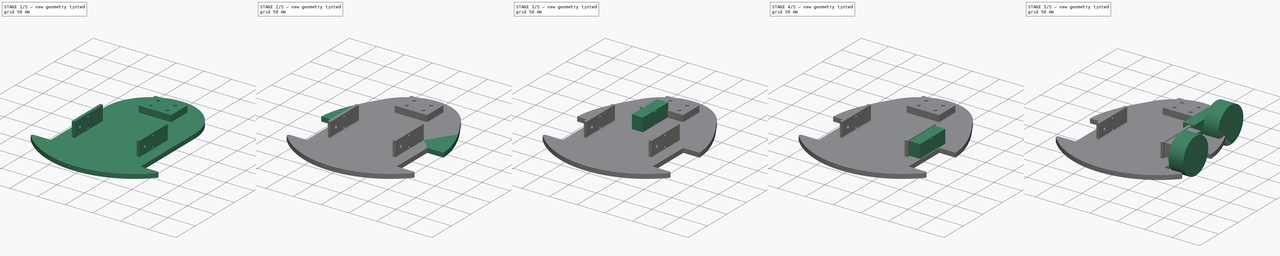
[diagram: build sequence overview — one tinted view per stage of 5, left to right]
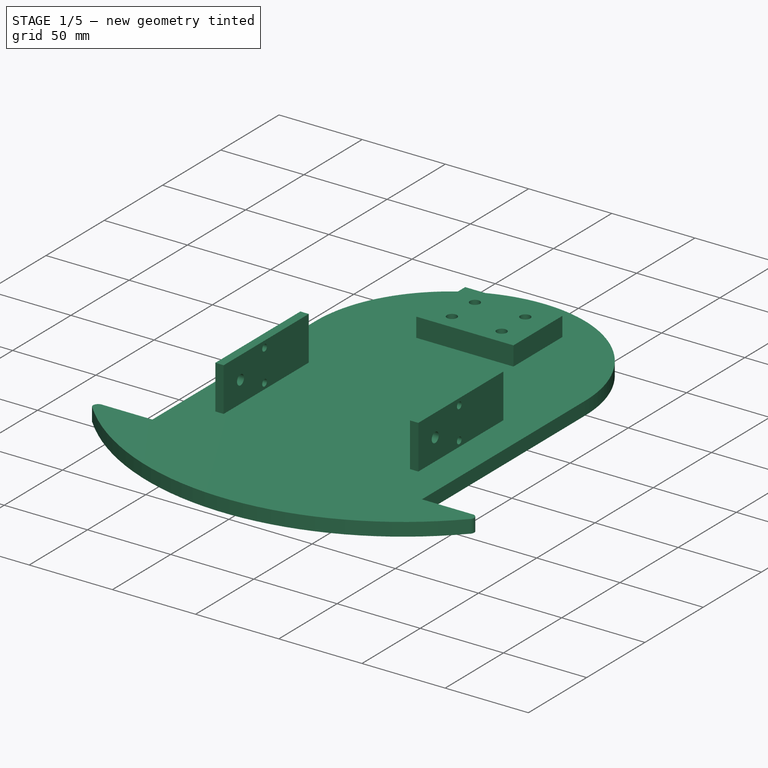
[diagram: stage 1 of 5 — iso view after this stage's code; geometry added in this stage tinted green]
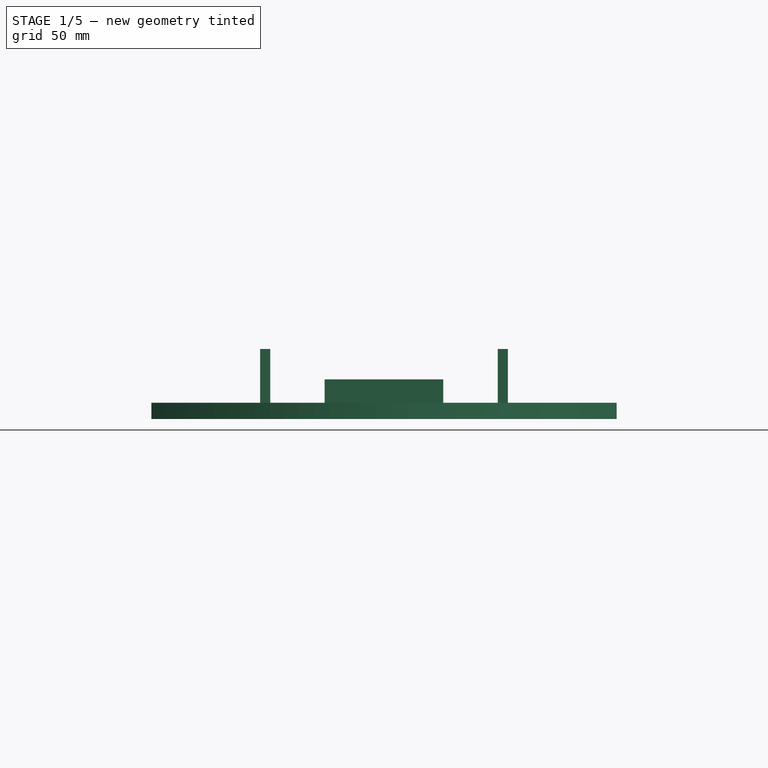
[diagram: stage 1 of 5 — front view after this stage's code; geometry added in this stage tinted green]
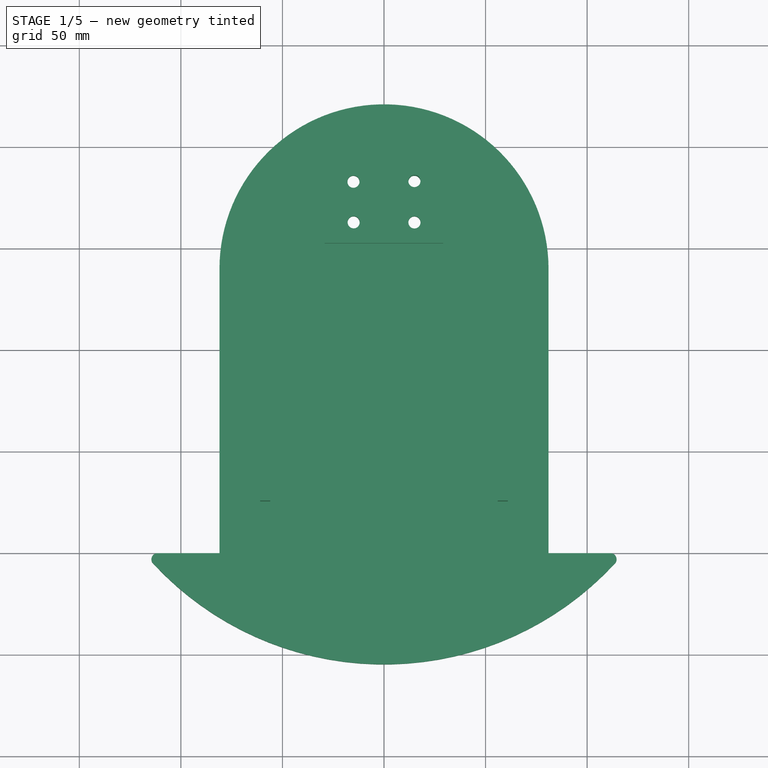
[diagram: stage 1 of 5 — top view after this stage's code; geometry added in this stage tinted green]
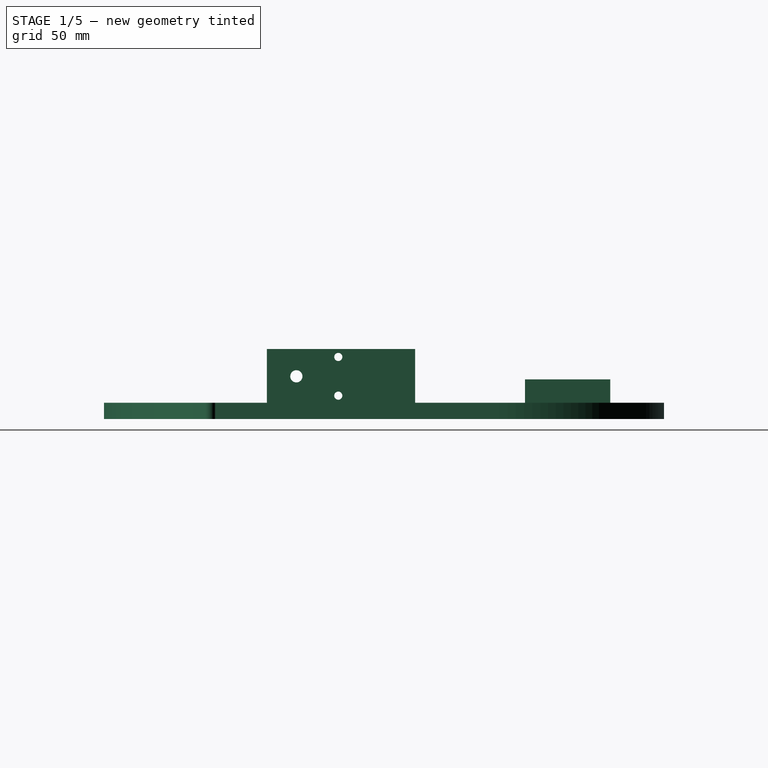
[diagram: stage 1 of 5 — right view after this stage's code; geometry added in this stage tinted green]
FCSTD DOCUMENT  (FreeCAD 0.19R24291 (Git))
Label: chasis_v2
License: All rights reserved
LicenseURL: http://en.wikipedia.org/wiki/All_rights_reserved
objects: Part::Mirroring×9, Part::MultiFuse×4, Sketcher::SketchObject×4, Part::Extrusion×4, Part::Cylinder×3, Part::Cut×2, Part::Box×1, Part::Chamfer×1
note: 28 computed .brp shape members not serialized (recipe doc carries the construction recipe); baked Part::Feature solids carry a one-line shape summary decoded from their .brp

FEATURE [Sketcher::SketchObject] Sketch001  label="sk_chasis_abajo2"
  FullyConstrained = false
  sketch-geometry (12):
    g0: LineSegment StartX=81 StartY=40 StartZ=0 EndX=81 EndY=-100 EndZ=0
    g1: LineSegment StartX=-81 StartY=-100 StartZ=0 EndX=-81 EndY=40 EndZ=0
    g2: LineSegment StartX=-81 StartY=-100 StartZ=0 EndX=-111 EndY=-100 EndZ=0
    g3: LineSegment StartX=81 StartY=-100 StartZ=0 EndX=111 EndY=-100 EndZ=0
    g4: ArcOfCircle CenterX=0 CenterY=0 CenterZ=0 NormalX=0 NormalY=0 NormalZ=1 AngleXU=0 Radius=154.77 StartAngle=3.89124 EndAngle=5.53353
    g5: ArcOfCircle CenterX=-111.452 CenterY=-103.016 CenterZ=0 NormalX=0 NormalY=0 NormalZ=1 AngleXU=0 Radius=3.05 StartAngle=1.42199 EndAngle=4.06966
    g6: ArcOfCircle CenterX=111.452 CenterY=-103.016 CenterZ=0 NormalX=0 NormalY=0 NormalZ=1 AngleXU=0 Radius=3.05 StartAngle=5.35512 EndAngle=8.00278
    g7: ArcOfCircle CenterX=-2.6e-15 CenterY=40 CenterZ=0 NormalX=0 NormalY=0 NormalZ=1 AngleXU=0 Radius=81 StartAngle=3.64792e-09 EndAngle=3.14159
    g8: Circle CenterX=-15 CenterY=82.8697 CenterZ=0 NormalX=0 NormalY=0 NormalZ=1 AngleXU=0 Radius=3
    g9: Circle CenterX=-15 CenterY=62.8697 CenterZ=0 NormalX=0 NormalY=0 NormalZ=1 AngleXU=0 Radius=3
    g10: Circle CenterX=15 CenterY=82.8697 CenterZ=0 NormalX=0 NormalY=0 NormalZ=1 AngleXU=0 Radius=3
    g11: Circle CenterX=15 CenterY=62.8697 CenterZ=0 NormalX=0 NormalY=0 NormalZ=1 AngleXU=0 Radius=3
  constraints (35):
    c: Vertical(g0)
    c: Vertical(g1)
    c: Symmetric(g1,g0,g-2)
    c: Horizontal(g2)
    c: DistanceX(g2,g2) = 30
    c: Horizontal(g3)
    c: Coincident(g4,g-1)
    c: DistanceY(g2,g-1) = 100
    c: Coincident(g5,g2)
    c: Coincident(g5,g4)
    c: Coincident(g6,g3)
    c: Coincident(g6,g4)
    c: Radius(g5) = 3.05
    c: Angle(g5) = 2.64766
    c: Radius(g6) = 3.05
    c: Angle(g6) = 2.64766
    c: Equal(g2,g3)
    c: Coincident(g3,g0)
    c: Coincident(g1,g2)
    c: DistanceY(g1,g1) = 140
    c: Equal(g1,g0)
    c: Coincident(g7,g1)
    c: Coincident(g7,g0)
    c: DistanceX(g1,g0) = 162
    c: Radius(g7) = 81
    c: Radius(g8) = 3
    c: Equal(g8,g9) = 3
    c: DistanceY(g9,g8) = 20
    c: Equal(g8,g10) = 3
    c: DistanceX(g8,g10) = 30
    c: DistanceX(g9,g11) = 30
    c: Symmetric(g8,g10,g-2)
    c: Symmetric(g9,g11,g-2)
    c: Distance(g11,g0) = 69.85
    c: Radius(g4) = 154.77
FEATURE [Sketcher::SketchObject] Sketch003  label="sk_Union_motor_chasis"
  FullyConstrained = false
  Placement = pos=(0,0,0) rot=(0.57735,0.57735,0.57735;2.0944rad)
  sketch-geometry (7):
    g0: LineSegment StartX=-74.52 StartY=13.438 StartZ=0 EndX=-1.52 EndY=13.438 EndZ=0
    g1: LineSegment StartX=-1.52 StartY=13.438 StartZ=0 EndX=-1.52 EndY=-13.562 EndZ=0
    g2: LineSegment StartX=-1.52 StartY=-13.562 StartZ=0 EndX=-74.52 EndY=-13.562 EndZ=0
    g3: LineSegment StartX=-74.52 StartY=-13.562 StartZ=0 EndX=-74.52 EndY=13.438 EndZ=0
    g4: Circle CenterX=-60.02 CenterY=0 CenterZ=0 NormalX=0 NormalY=0 NormalZ=1 AngleXU=0 Radius=3
    g5: Circle CenterX=-39.38 CenterY=9.52 CenterZ=0 NormalX=0 NormalY=0 NormalZ=1 AngleXU=0 Radius=2
    g6: Circle CenterX=-39.38 CenterY=-9.52 CenterZ=0 NormalX=0 NormalY=0 NormalZ=1 AngleXU=0 Radius=2
  constraints (19):
    c: Coincident(g0,g1)
    c: Coincident(g1,g2)
    c: Coincident(g2,g3)
    c: Coincident(g3,g0)
    c: Horizontal(g0)
    c: Horizontal(g2)
    c: Vertical(g1)
    c: Vertical(g3)
    c: DistanceY(g3,g3) = 27
    c: DistanceX(g0,g0) = 73
    c: PointOnObject(g4,g-1)
    c: Radius(g4) = 3
    c: Radius(g5) = 2
    c: Radius(g6) = 2
    c: Symmetric(g5,g6,g-1)
    c: DistanceY(g6,g5) = 19.04
    c: Distance(g4,g3) = 14.5
    c: DistanceX(g-2,g0) = -1.52
    c: Distance(g5,g3) = 35.14
FEATURE [Part::Extrusion] Extrude002  label="Union_chasis_base"
  Base = -> Sketch003
  Dir = (1,0,0)
  DirMode = 2
  FaceMakerClass = Part::FaceMakerBullseye
  LengthFwd = 5
  LengthRev = 0
  Placement = pos=(-61,0,1) rot=(0,0,1;0rad)
  Solid = true
  Symmetric = false
FEATURE [Part::Mirroring] Part__Mirroring008  label="Union_chasis_base (Mirror #9)"
  Base = (0,0,0)
  Normal = (1,0,0)
  Source = -> Extrude002
FEATURE [Part::Extrusion] Extrude  label="base_chasis_abajo"
  Base = -> Sketch001
  Dir = (0,0,1)
  DirMode = 2
  FaceMakerClass = Part::FaceMakerBullseye
  LengthFwd = 8
  LengthRev = 0
  Placement = pos=(0,0,-20) rot=(0,0,1;0rad)
  Solid = true
  Symmetric = false
FEATURE [Part::MultiFuse] Fusion001  label="base con uniones"
  Refine = true
  Shapes = -> [Extrude,Extrude002,Part__Mirroring008]
FEATURE [Sketcher::SketchObject] Sketch004
  FullyConstrained = false
  sketch-geometry (8):
    g0: LineSegment StartX=-29.2 StartY=94.5227 StartZ=0 EndX=29.2 EndY=94.5227 EndZ=0
    g1: LineSegment StartX=29.2 StartY=94.5227 StartZ=0 EndX=29.2 EndY=52.5227 EndZ=0
    g2: LineSegment StartX=29.2 StartY=52.5227 StartZ=0 EndX=-29.2 EndY=52.5227 EndZ=0
    g3: LineSegment StartX=-29.2 StartY=52.5227 StartZ=0 EndX=-29.2 EndY=94.5227 EndZ=0
    g4: Circle CenterX=-15.07 CenterY=82.7027 CenterZ=0 NormalX=0 NormalY=0 NormalZ=1 AngleXU=0 Radius=3
    g5: Circle CenterX=14.96 CenterY=83.0459 CenterZ=0 NormalX=0 NormalY=0 NormalZ=1 AngleXU=0 Radius=3
    g6: Circle CenterX=-14.926 CenterY=62.7227 CenterZ=0 NormalX=0 NormalY=0 NormalZ=1 AngleXU=0 Radius=3
    g7: Circle CenterX=14.984 CenterY=62.6759 CenterZ=0 NormalX=0 NormalY=0 NormalZ=1 AngleXU=0 Radius=3
  constraints (20):
    c: Coincident(g0,g1)
    c: Coincident(g1,g2)
    c: Coincident(g2,g3)
    c: Coincident(g3,g0)
    c: Horizontal(g0)
    c: Vertical(g1)
    c: Vertical(g3)
    c: DistanceY(g3,g3) = 42
    c: Symmetric(g2,g1,g-2)
    c: Distance(g4,g0) = 11.82
    c: DistanceX(g4,g5) = 30.03
    c: DistanceY(g6,g4) = 19.98
    c: DistanceX(g6,g7) = 29.91
    c: Distance(g5,g1) = 14.24
    c: DistanceY(g7,g5) = 20.37
    c: DistanceX(g0,g0) = 58.4
    c: Radius(g5) = 3
    c: Radius(g4) = 3
    c: Radius(g6) = 3
    c: Radius(g7) = 3
FEATURE [Part::Extrusion] Extrude004  label="rueda_loca"
  Base = -> Sketch004
  Dir = (0,0,1)
  DirMode = 2
  FaceMakerClass = Part::FaceMakerBullseye
  LengthFwd = 11.5
  LengthRev = 0
  Placement = pos=(0,0,-12) rot=(0,0,1;0rad)
  Solid = true
  Symmetric = false
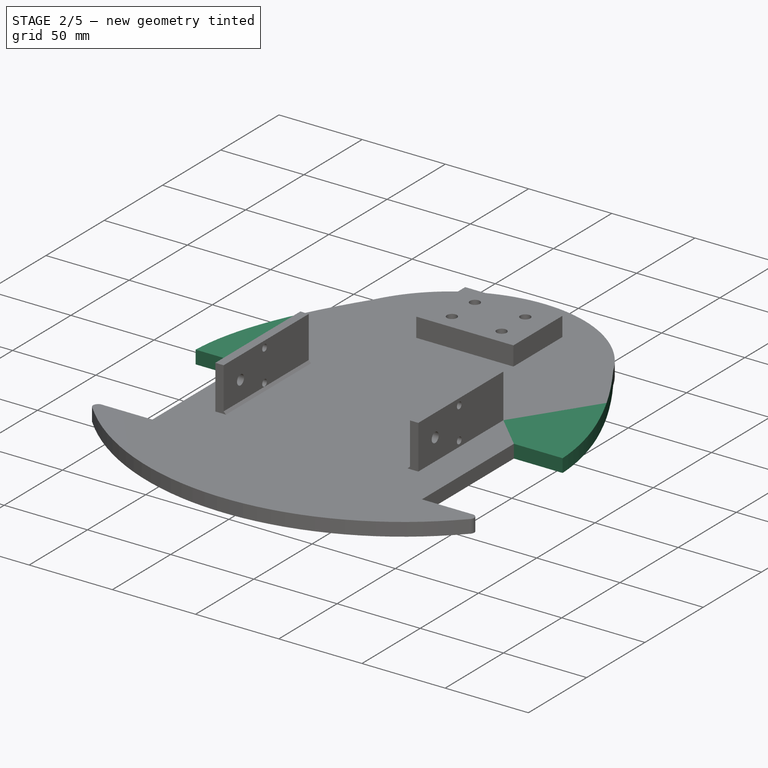
[diagram: stage 2 of 5 — iso view after this stage's code; geometry added in this stage tinted green]
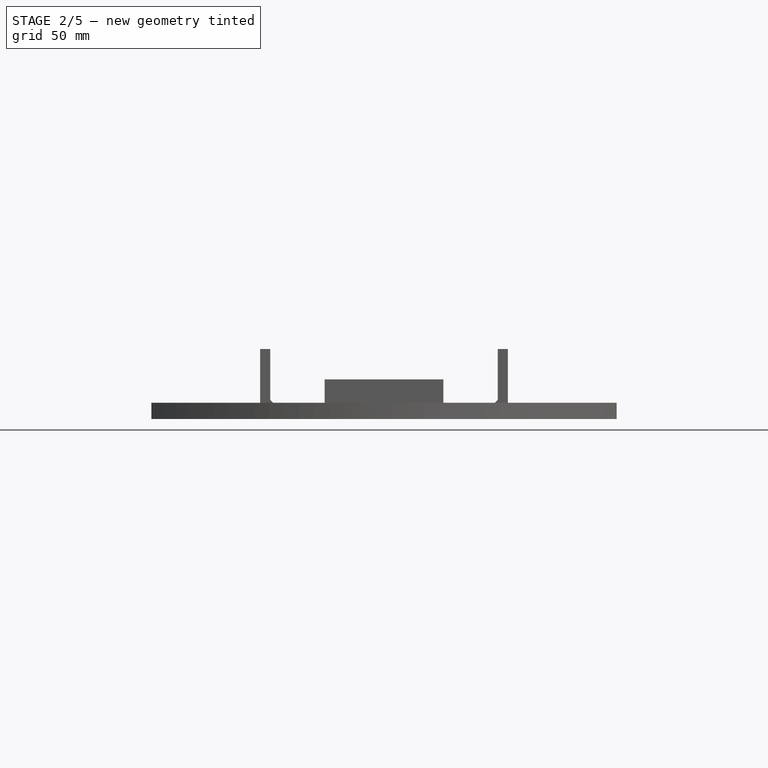
[diagram: stage 2 of 5 — front view after this stage's code; geometry added in this stage tinted green]
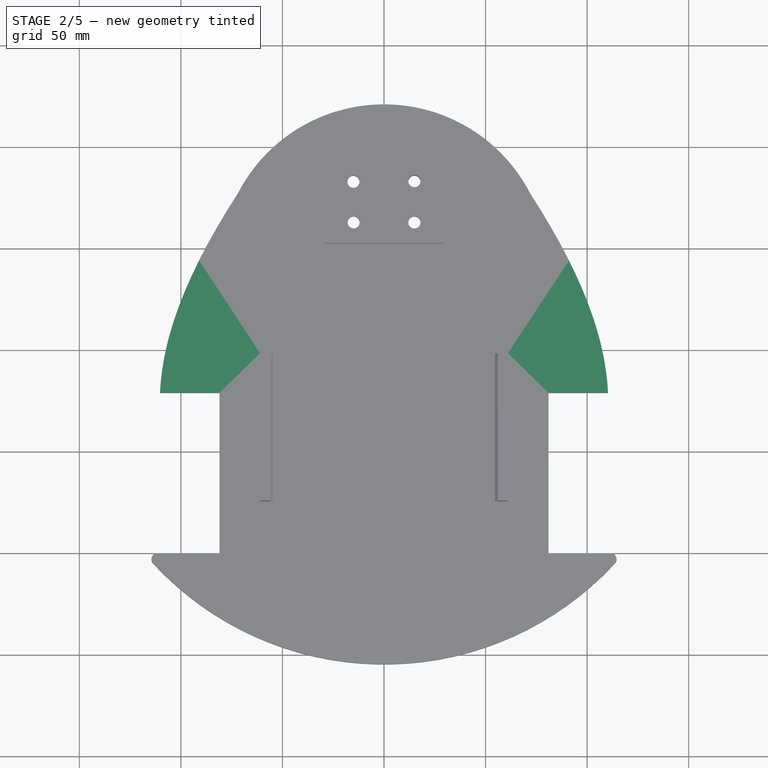
[diagram: stage 2 of 5 — top view after this stage's code; geometry added in this stage tinted green]
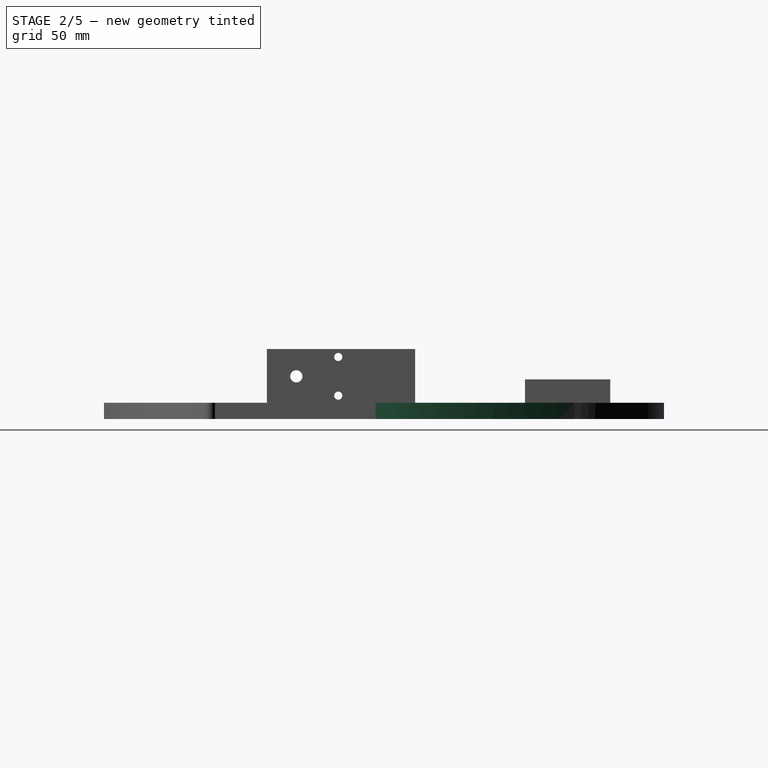
[diagram: stage 2 of 5 — right view after this stage's code; geometry added in this stage tinted green]
FEATURE [Sketcher::SketchObject] Sketch
  FullyConstrained = false
  sketch-geometry (9):
    g0: LineSegment StartX=-81.2819 StartY=-21.0619 StartZ=0 EndX=-111.282 EndY=-21.0619 EndZ=0
    g1-g4: Circle x4 (B-spline internal-alignment scaffolding for g5; pole/knot coordinates omitted)
    g5: BSplineCurve PolesCount=4 KnotsCount=2 Degree=3 IsPeriodic=0
    g6: GeomPoint X=-111.282 Y=-21.0619 Z=0
    g7: GeomPoint X=-67.3888 Y=85.4559 Z=0
    g8: LineSegment StartX=-67.3888 StartY=85.4559 StartZ=0 EndX=-81.2819 EndY=-21.0619 EndZ=0
  constraints (13):
    c: Horizontal(g0)
    c: DistanceX(g0,g0) = 30
    c: Coincident(g5,g0)
    c: Weight(g1) = 1
    c: Equal(g1,g2)
    c: Equal(g1,g3)
    c: Equal(g1,g4)
    c: InternalAlignment(g1-g4 -> g5) x4
    c: InternalAlignment(g6,g5)
    c: InternalAlignment(g7,g5)
    c: Coincident(g8,g5)
    c: Coincident(g8,g0)
    c: Distance(g8) = 107.42
FEATURE [Part::Extrusion] Extrude003  label="aleron"
  Base = -> Sketch
  Dir = (0,0,1)
  DirMode = 2
  FaceMakerClass = Part::FaceMakerBullseye
  LengthFwd = 8
  LengthRev = 0
  Placement = pos=(1,0,-20) rot=(0,0,1;0rad)
  Solid = true
  Symmetric = false
FEATURE [Part::Mirroring] Part__Mirroring009  label="aleron (Mirror #9)"
  Base = (0,0,0)
  Normal = (1,0,0)
  Source = -> Extrude003
FEATURE [Part::Chamfer] Chamfer
  Base = -> Fusion001
  Edges = 2 edges r=1.4: [Edge28,Edge29]
FEATURE [Part::MultiFuse] Fusion002  label="Ampliacion base"
  Refine = true
  Shapes = -> [Chamfer,Extrude003,Part__Mirroring009]
FEATURE [Part::MultiFuse] Fusion003  label="chasis_abajo"
  Refine = true
  Shapes = -> [Fusion002,Extrude004]
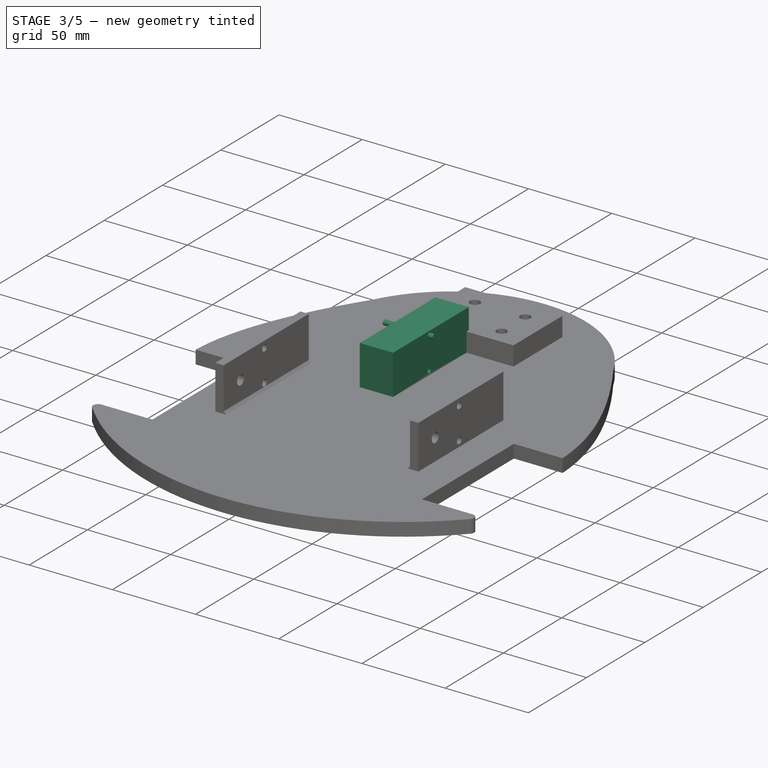
[diagram: stage 3 of 5 — iso view after this stage's code; geometry added in this stage tinted green]
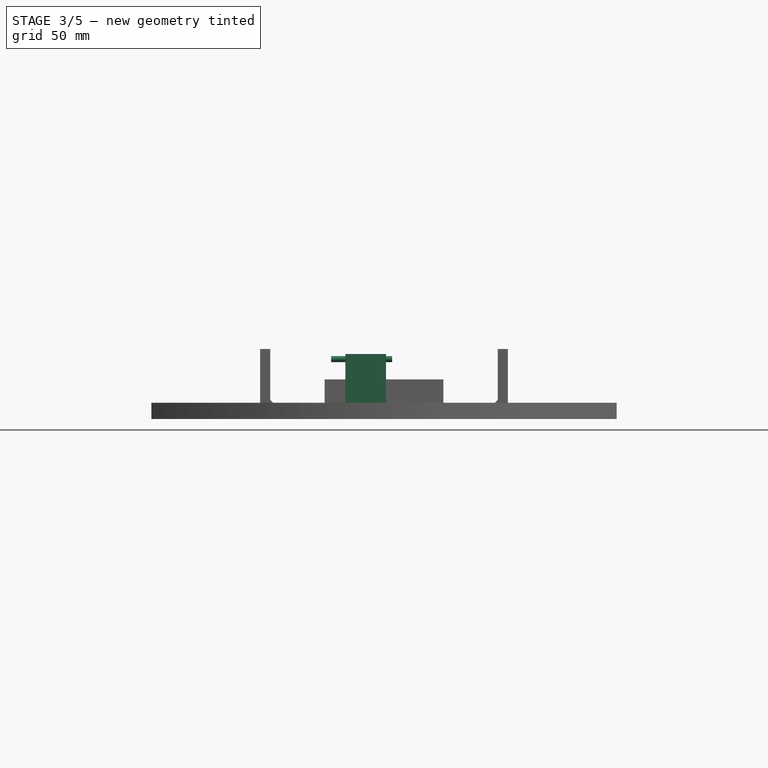
[diagram: stage 3 of 5 — front view after this stage's code; geometry added in this stage tinted green]
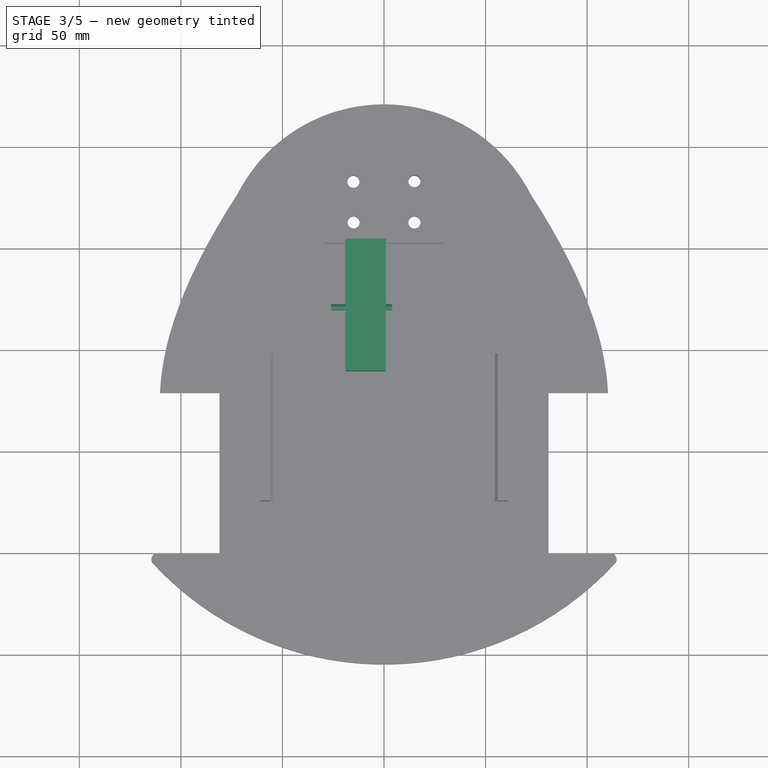
[diagram: stage 3 of 5 — top view after this stage's code; geometry added in this stage tinted green]
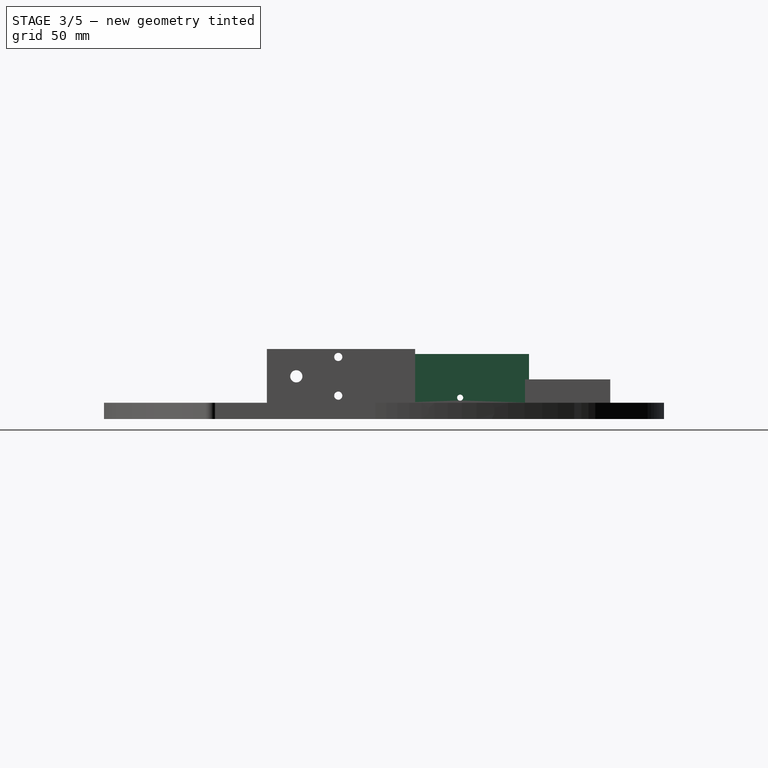
[diagram: stage 3 of 5 — right view after this stage's code; geometry added in this stage tinted green]
FEATURE [Part::Box] Box  label="Cube"
  AttacherType = Attacher::AttachEngine3D
  Height = 24
  Length = 20
  Placement = pos=(-19,-10.5,-12) rot=(0,0,1;0rad)
  Width = 65
FEATURE [Part::Cylinder] Cylinder002
  Angle = 360
  AttacherType = Attacher::AttachEngine3D
  Height = 30
  Placement = pos=(4,20.63,-9.5) rot=(0,-1,0;1.5708rad)
  Radius = 1.5
FEATURE [Part::Mirroring] Part__Mirroring  label="Cylinder002 (Mirror #1)"
  Base = (0,0,0)
  Normal = (0,0,1)
  Source = -> Cylinder002
FEATURE [Part::Cut] Cut
  Base = -> Box
  Refine = true
  Tool = -> Cylinder002
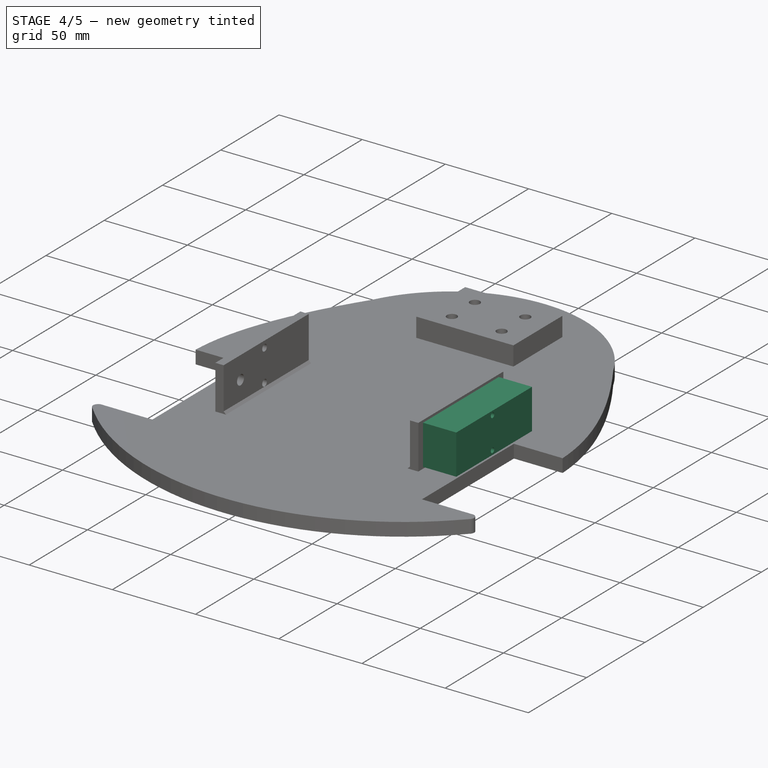
[diagram: stage 4 of 5 — iso view after this stage's code; geometry added in this stage tinted green]
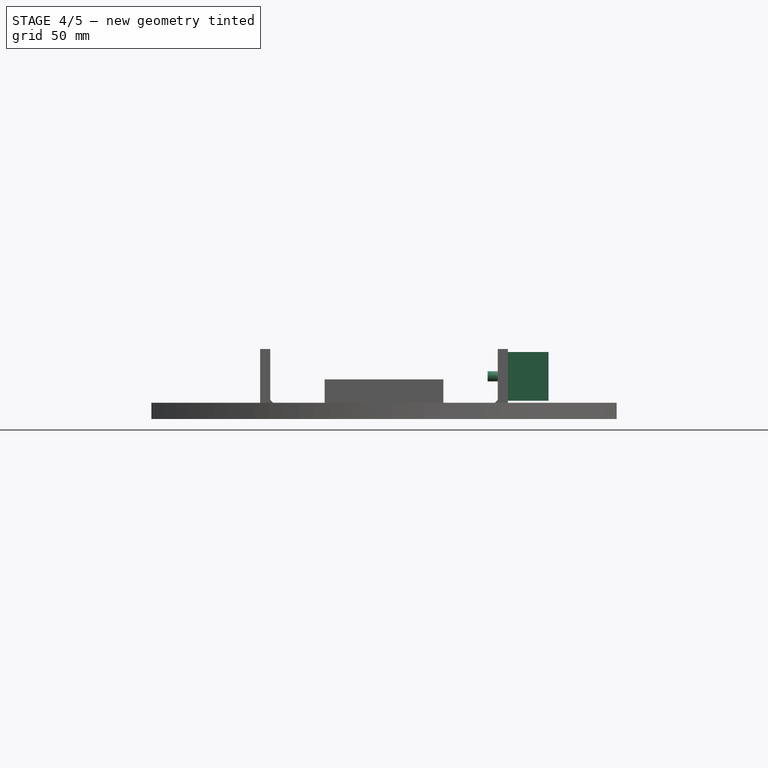
[diagram: stage 4 of 5 — front view after this stage's code; geometry added in this stage tinted green]
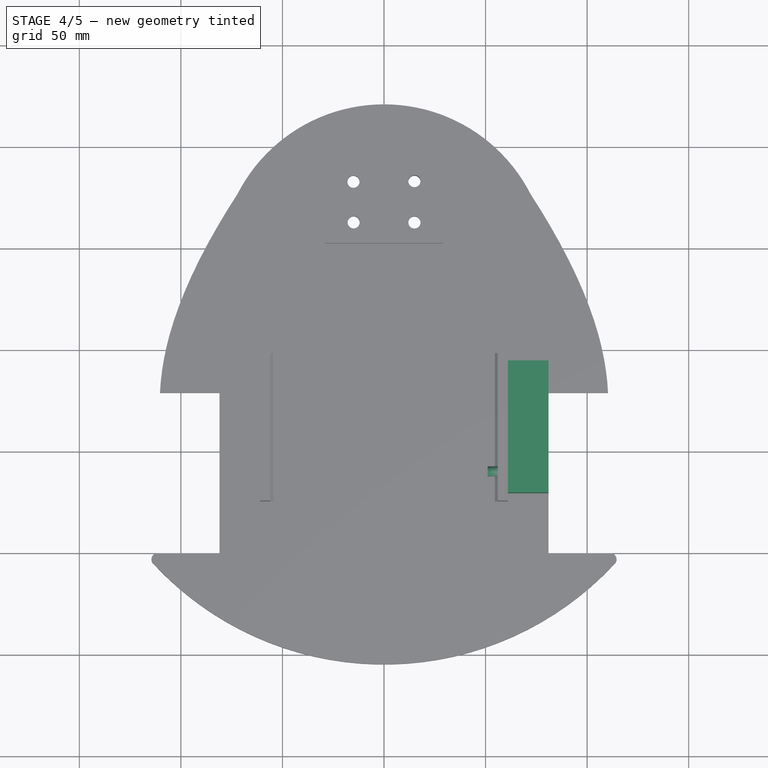
[diagram: stage 4 of 5 — top view after this stage's code; geometry added in this stage tinted green]
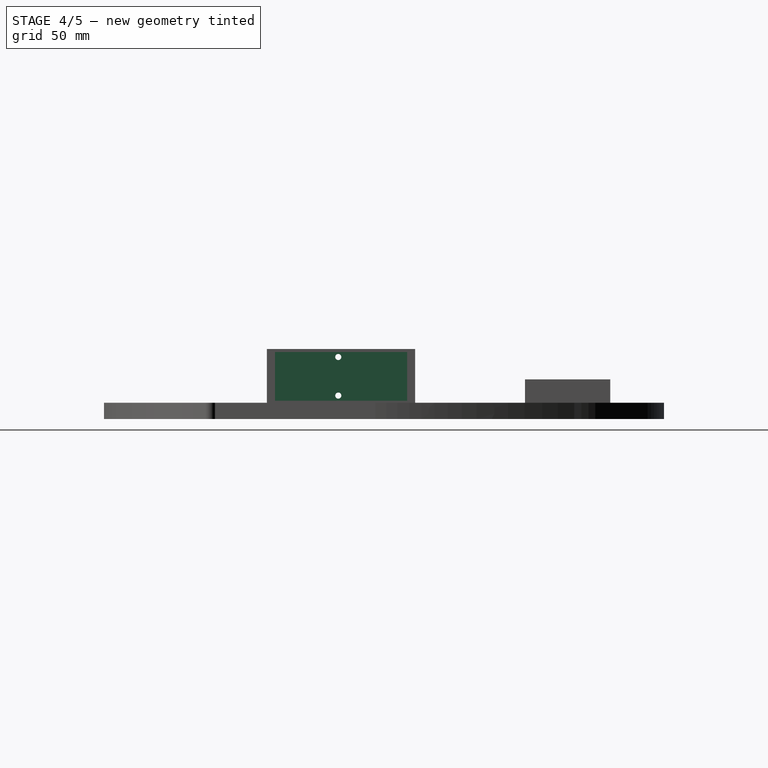
[diagram: stage 4 of 5 — right view after this stage's code; geometry added in this stage tinted green]
FEATURE [Part::Cylinder] Cylinder001  label="Cylinder"
  Angle = 360
  AttacherType = Attacher::AttachEngine3D
  Height = 10
  Placement = pos=(-20,0,1e-15) rot=(0,-1,0;1.5708rad)
  Radius = 2.5
FEATURE [Part::Cut] Cut001
  Base = -> Cut
  Placement = pos=(-1,0,0) rot=(0,0,1;0rad)
  Refine = true
  Tool = -> Part__Mirroring
FEATURE [Part::MultiFuse] Fusion  label="Motor"
  Placement = pos=(-61,60,8e-15) rot=(0,0,1;3.14159rad)
  Refine = true
  Shapes = -> [Cut001,Cylinder001]
FEATURE [Part::Mirroring] Part__Mirroring004  label="Motor (Mirror #5)"
  Base = (0,0,0)
  Normal = (0,1,0)
  Placement = pos=(-20,0,1) rot=(0,0,1;0rad)
  Source = -> Fusion
FEATURE [Part::Mirroring] Part__Mirroring006  label="Motor (Mirror #7)"
  Base = (0,0,0)
  Normal = (1,0,0)
  Source = -> Part__Mirroring004
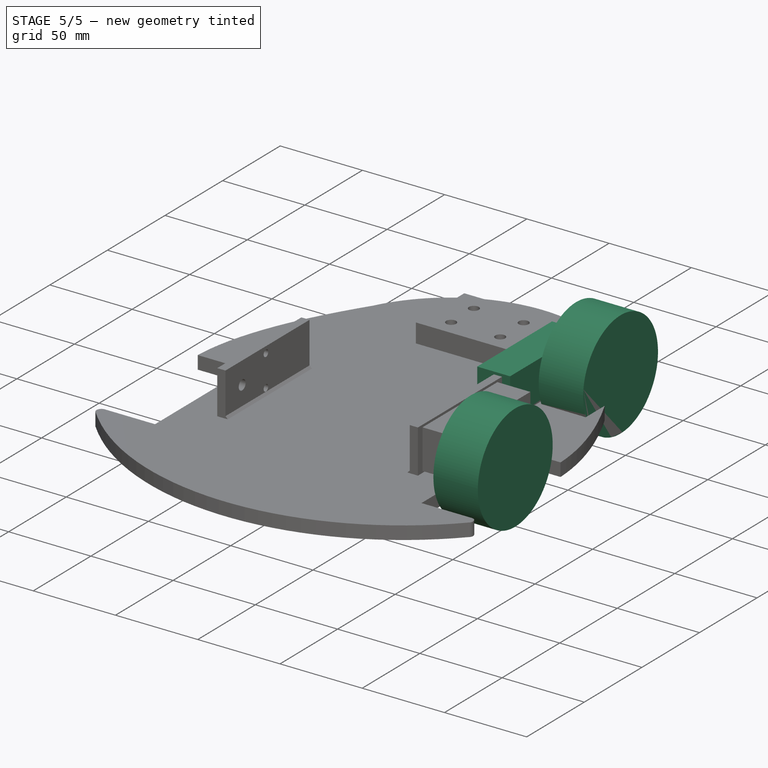
[diagram: stage 5 of 5 — iso view after this stage's code; geometry added in this stage tinted green]
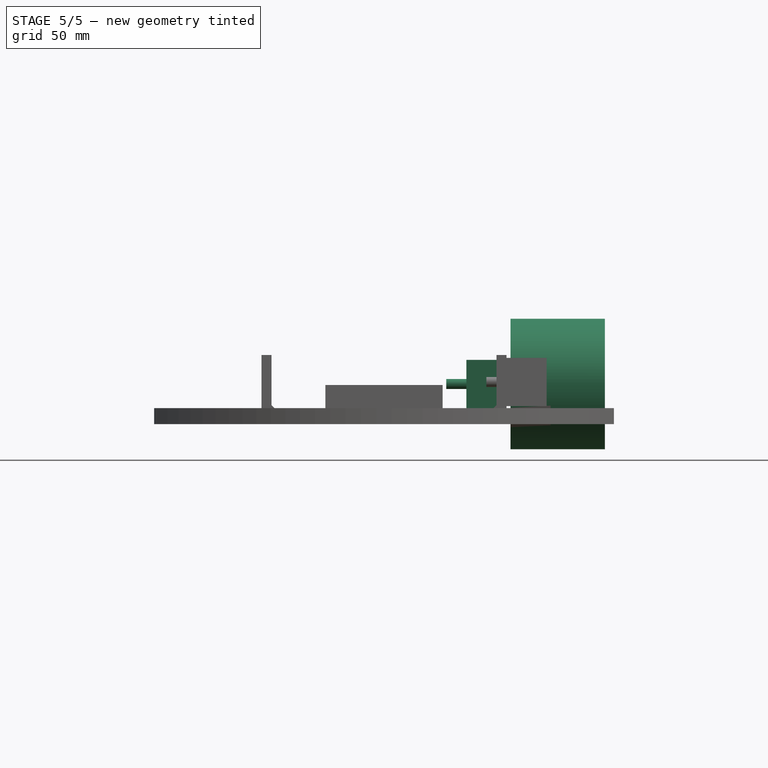
[diagram: stage 5 of 5 — front view after this stage's code; geometry added in this stage tinted green]
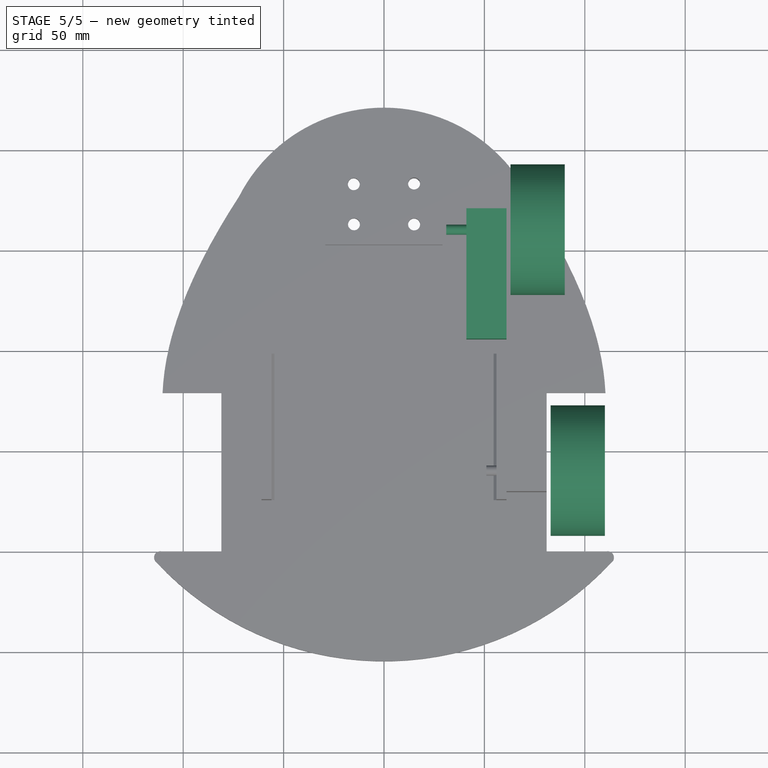
[diagram: stage 5 of 5 — top view after this stage's code; geometry added in this stage tinted green]
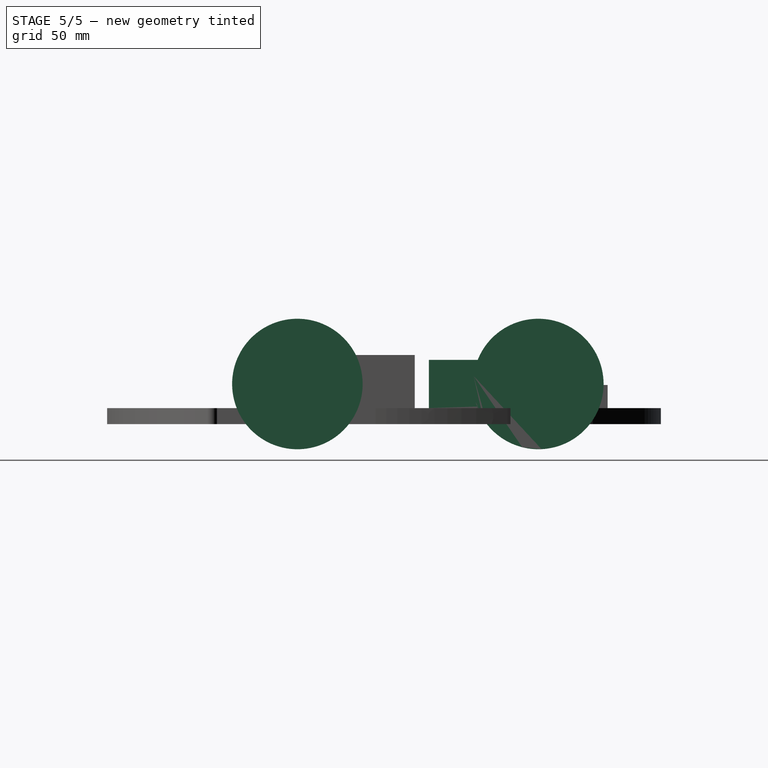
[diagram: stage 5 of 5 — right view after this stage's code; geometry added in this stage tinted green]
FEATURE [Part::Cylinder] Cylinder  label="Neumatico"
  Angle = 360
  AttacherType = Attacher::AttachEngine3D
  Height = 27
  Placement = pos=(-90,60,-2.3e-14) rot=(0,1,0;1.5708rad)
  Radius = 32.5
FEATURE [Part::Mirroring] Part__Mirroring001  label="Neumatico (Mirror #2)"
  Base = (0,0,0)
  Normal = (1,0,0)
  Source = -> Cylinder
FEATURE [Part::Mirroring] Part__Mirroring002  label="Motor (Mirror #3)"
  Base = (0,0,0)
  Normal = (1,0,0)
  Source = -> Fusion
FEATURE [Part::Mirroring] Part__Mirroring003  label="Neumatico (Mirror #4)"
  Base = (0,0,0)
  Normal = (0,1,0)
  Placement = pos=(-20,0,0) rot=(0,0,1;0rad)
  Source = -> Cylinder
FEATURE [Part::Mirroring] Part__Mirroring005  label="Neumatico (Mirror #6)"
  Base = (0,0,0)
  Normal = (1,0,0)
  Source = -> Part__Mirroring003
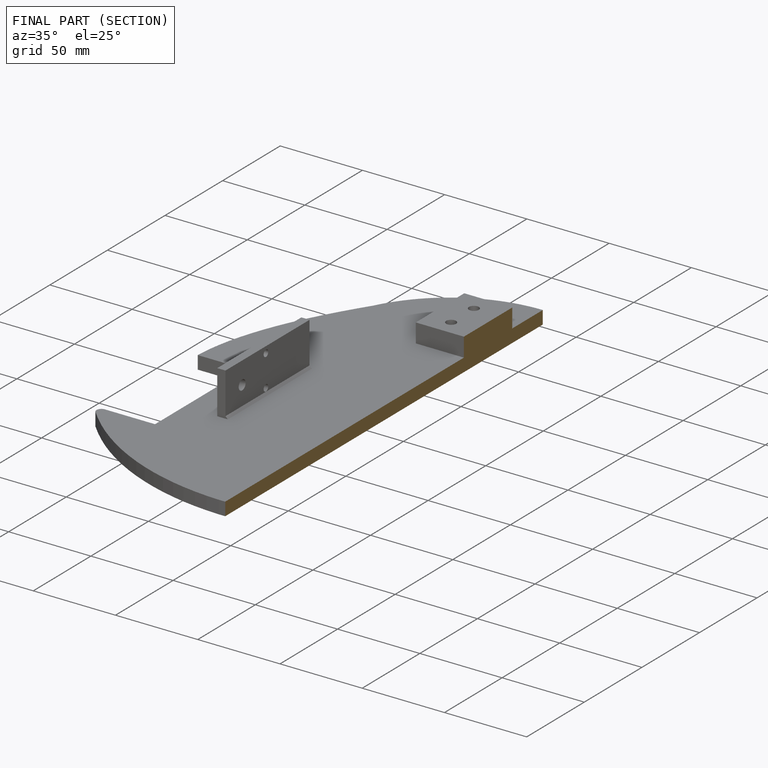
[diagram: finished part — half-section view (interior)]
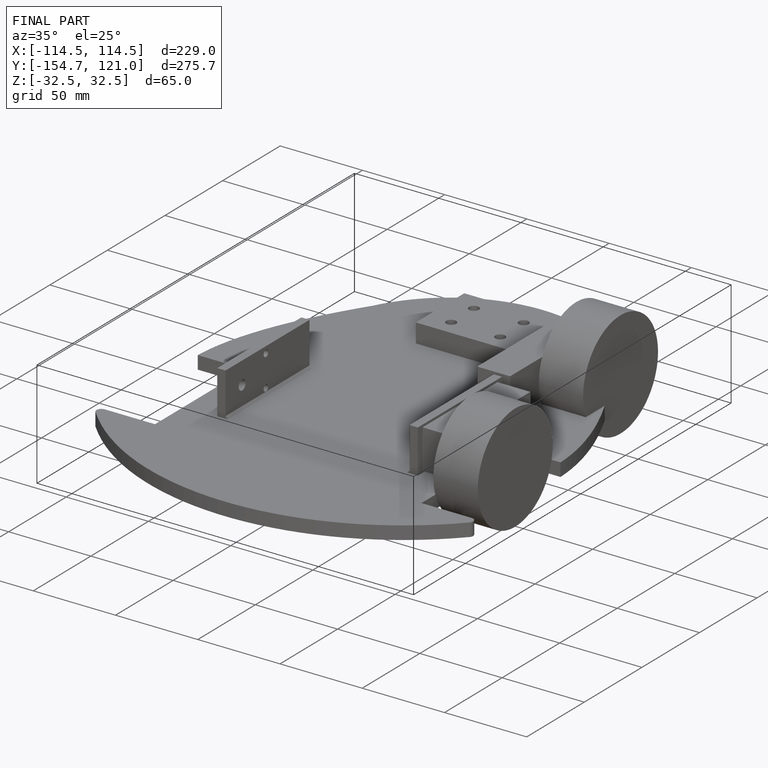
[diagram: finished part — iso view with bounding-box wireframe]
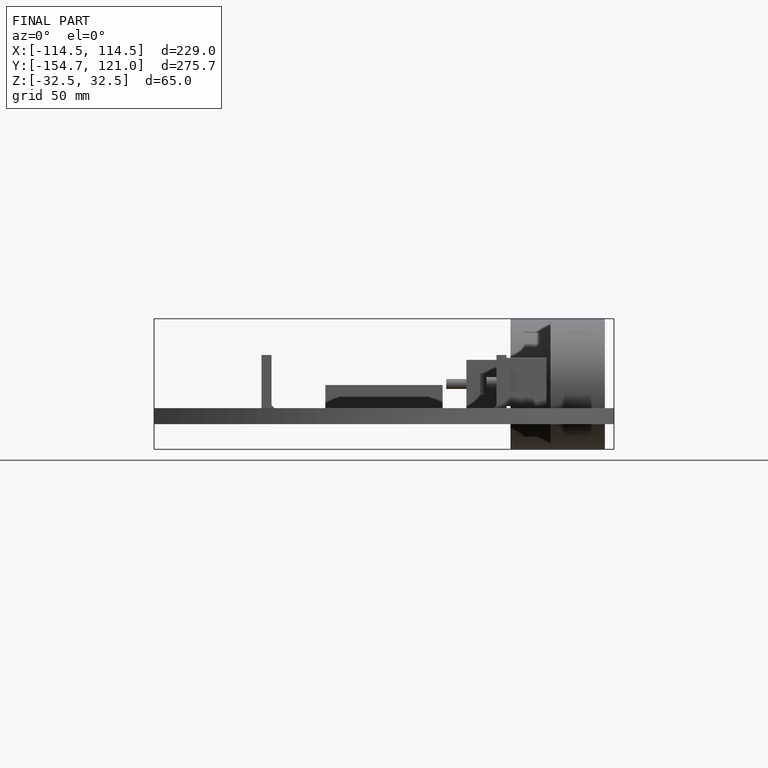
[diagram: finished part — front view with bounding-box wireframe]
